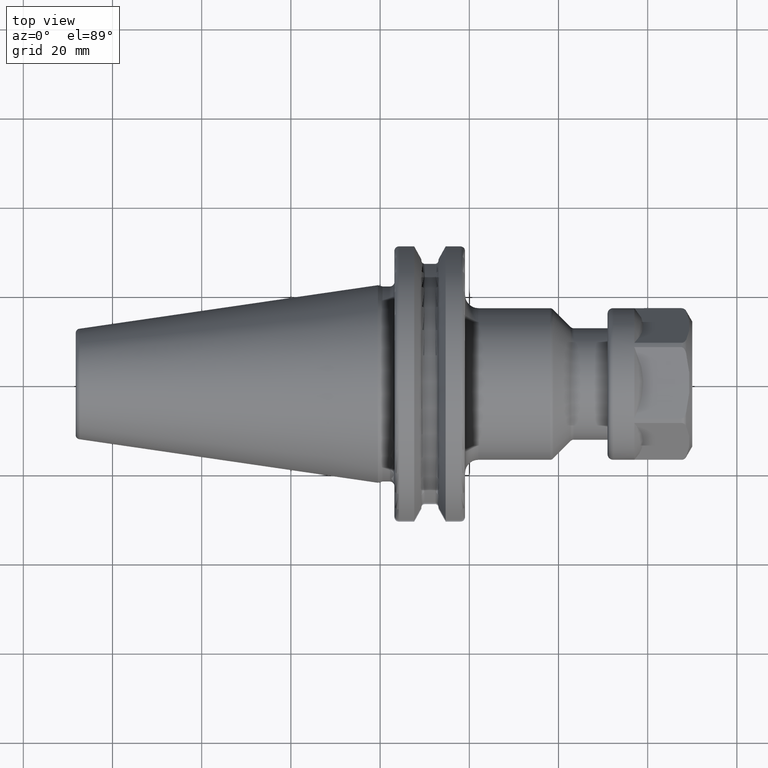
[diagram: clean part render]
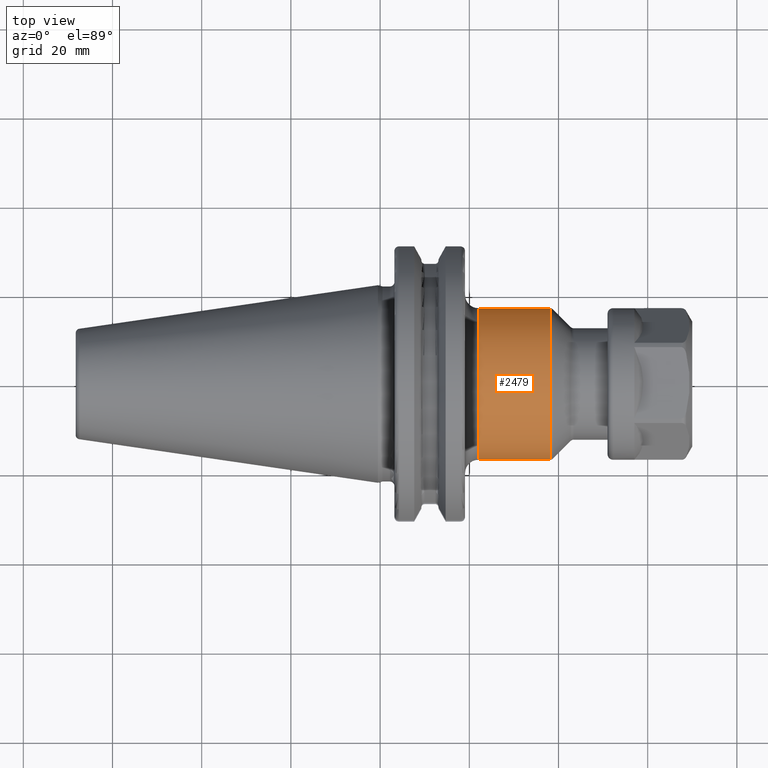
[diagram: same view with one face highlighted and labeled with its STEP entity id]
A machine part, top view. The second image highlights one B-rep face of the part: STEP entity #2479.
In plain terms, the highlighted cylindrical surface (partial cylindrical patch) has radius 17 mm, axis along (1, 0, 0).
Its self-contained STEP definition (entity closure, byte-faithful):
#908=CARTESIAN_POINT('',(3.808578643763E1,0.E0,0.E0));
#909=DIRECTION('',(-1.E0,0.E0,0.E0));
#910=DIRECTION('',(0.E0,-1.E0,0.E0));
#911=AXIS2_PLACEMENT_3D('',#908,#909,#910);
#913=CARTESIAN_POINT('',(2.205E1,0.E0,0.E0));
#914=DIRECTION('',(1.E0,0.E0,0.E0));
#915=DIRECTION('',(0.E0,1.E0,0.E0));
#916=AXIS2_PLACEMENT_3D('',#913,#914,#915);
#933=DIRECTION('',(-1.E0,0.E0,2.095291738267E-13));
#934=VECTOR('',#933,1.603578643763E1);
#935=CARTESIAN_POINT('',(3.808578643763E1,1.7E1,-7.296453949839E-13));
#936=LINE('',#935,#934);
#942=DIRECTION('',(-1.E0,0.E0,-2.089420063068E-13));
#943=VECTOR('',#942,1.603578643763E1);
#944=CARTESIAN_POINT('',(3.808578643763E1,-1.7E1,7.215688507074E-13));
#945=LINE('',#944,#943);
#1487=CARTESIAN_POINT('',(2.205E1,-1.7E1,0.E0));
#1488=CARTESIAN_POINT('',(2.205E1,1.7E1,0.E0));
#1489=VERTEX_POINT('',#1487);
#1490=VERTEX_POINT('',#1488);
#1491=CARTESIAN_POINT('',(3.808578643763E1,1.7E1,0.E0));
#1492=CARTESIAN_POINT('',(3.808578643763E1,-1.7E1,0.E0));
#1493=VERTEX_POINT('',#1491);
#1494=VERTEX_POINT('',#1492);
#2465=CARTESIAN_POINT('',(1.70775E1,0.E0,0.E0));
#2466=DIRECTION('',(1.E0,0.E0,0.E0));
#2467=DIRECTION('',(0.E0,-1.E0,0.E0));
#2468=AXIS2_PLACEMENT_3D('',#2465,#2466,#2467);
#2469=CYLINDRICAL_SURFACE('',#2468,1.7E1);
#2471=ORIENTED_EDGE('',*,*,#2470,.F.);
#2473=ORIENTED_EDGE('',*,*,#2472,.T.);
#2474=ORIENTED_EDGE('',*,*,#2459,.F.);
#2476=ORIENTED_EDGE('',*,*,#2475,.F.);
#2477=EDGE_LOOP('',(#2471,#2473,#2474,#2476));
#2478=FACE_OUTER_BOUND('',#2477,.F.);
#2479=ADVANCED_FACE('',(#2478),#2469,.T.);
#912=CIRCLE('',#911,1.7E1);
#917=CIRCLE('',#916,1.7E1);
#2459=EDGE_CURVE('',#1490,#1489,#917,.T.);
#2470=EDGE_CURVE('',#1494,#1493,#912,.T.);
#2472=EDGE_CURVE('',#1494,#1489,#945,.T.);
#2475=EDGE_CURVE('',#1493,#1490,#936,.T.);